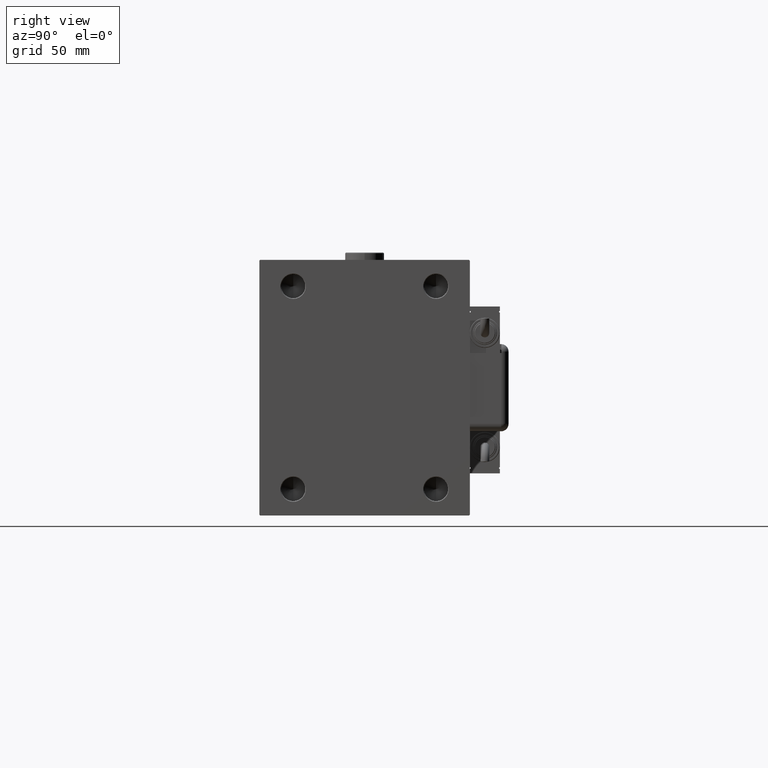
[diagram: clean part render]
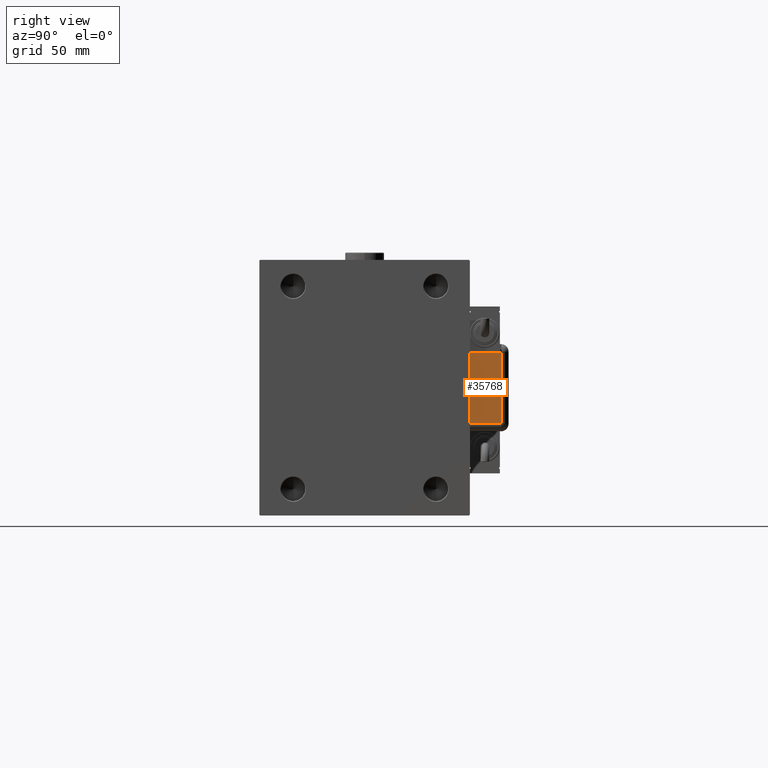
[diagram: same view with one face highlighted and labeled with its STEP entity id]
A machine part, right view. The second image highlights one B-rep face of the part: STEP entity #35768.
In plain terms, the highlighted planar face has unit normal (1, -0, -0).
Its self-contained STEP definition (entity closure, byte-faithful):
#97 = FACE_OUTER_BOUND ( 'NONE', #5649, .T. ) ;
#475 = EDGE_CURVE ( 'NONE', #59196, #15305, #8793, .T. ) ;
#1160 = VECTOR ( 'NONE', #48503, 1000.000000000000000 ) ;
#3056 = VECTOR ( 'NONE', #63260, 1000.000000000000000 ) ;
#5649 = EDGE_LOOP ( 'NONE', ( #14278, #44533, #53212, #47483 ) ) ;
#8718 = VECTOR ( 'NONE', #32786, 1000.000000000000000 ) ;
#8793 = LINE ( 'NONE', #28641, #1160 ) ;
#9655 = EDGE_CURVE ( 'NONE', #38835, #59196, #44726, .T. ) ;
#11429 = CARTESIAN_POINT ( 'NONE',  ( -23.99999999999999645, 20.79999999999998295, 0.000000000000000000 ) ) ;
#13032 = CARTESIAN_POINT ( 'NONE',  ( 23.00000000000000000, 0.000000000000000000, 0.000000000000000000 ) ) ;
#14278 = ORIENTED_EDGE ( 'NONE', *, *, #33877, .T. ) ;
#15305 = VERTEX_POINT ( 'NONE', #20131 ) ;
#20131 = CARTESIAN_POINT ( 'NONE',  ( 23.00000000000000000, 20.79999999999998295, 1.734723475976807094E-15 ) ) ;
#23522 = CARTESIAN_POINT ( 'NONE',  ( -23.99999999999999289, 1.007682896475360021E-13, 0.000000000000000000 ) ) ;
#24969 = AXIS2_PLACEMENT_3D ( 'NONE', #30024, #45295, #35840 ) ;
#28641 = CARTESIAN_POINT ( 'NONE',  ( 23.00000000000000000, 0.000000000000000000, 0.000000000000000000 ) ) ;
#30024 = CARTESIAN_POINT ( 'NONE',  ( 0.000000000000000000, 0.000000000000000000, 0.000000000000000000 ) ) ;
#32786 = DIRECTION ( 'NONE',  ( 1.000000000000000000, -2.079047426506382950E-15, -0.000000000000000000 ) ) ;
#32952 = LINE ( 'NONE', #62926, #3056 ) ;
#33096 = CARTESIAN_POINT ( 'NONE',  ( -23.99999999999999645, 20.79999999999998295, 0.000000000000000000 ) ) ;
#33877 = EDGE_CURVE ( 'NONE', #48290, #15305, #32952, .T. ) ;
#35206 = DIRECTION ( 'NONE',  ( -0.000000000000000000, 1.000000000000000000, -0.000000000000000000 ) ) ;
#35768 = ADVANCED_FACE ( 'NONE', ( #97 ), #54451, .T. ) ;
#35840 = DIRECTION ( 'NONE',  ( -1.000000000000000000, 0.000000000000000000, -0.000000000000000000 ) ) ;
#38835 = VERTEX_POINT ( 'NONE', #23522 ) ;
#44533 = ORIENTED_EDGE ( 'NONE', *, *, #475, .F. ) ;
#44726 = LINE ( 'NONE', #49282, #8718 ) ;
#45295 = DIRECTION ( 'NONE',  ( 0.000000000000000000, 0.000000000000000000, -1.000000000000000000 ) ) ;
#45606 = LINE ( 'NONE', #11429, #47667 ) ;
#47483 = ORIENTED_EDGE ( 'NONE', *, *, #63830, .T. ) ;
#47667 = VECTOR ( 'NONE', #35206, 1000.000000000000000 ) ;
#48290 = VERTEX_POINT ( 'NONE', #33096 ) ;
#48503 = DIRECTION ( 'NONE',  ( 0.000000000000000000, 1.000000000000000000, 0.000000000000000000 ) ) ;
#49282 = CARTESIAN_POINT ( 'NONE',  ( 28.99999999999999645, -9.421223957302265857E-15, 0.000000000000000000 ) ) ;
#53212 = ORIENTED_EDGE ( 'NONE', *, *, #9655, .F. ) ;
#54451 = PLANE ( 'NONE',  #24969 ) ;
#59196 = VERTEX_POINT ( 'NONE', #13032 ) ;
#62926 = CARTESIAN_POINT ( 'NONE',  ( 23.99999999999999289, 20.79999999999998295, 0.000000000000000000 ) ) ;
#63260 = DIRECTION ( 'NONE',  ( 1.000000000000000000, -0.000000000000000000, -0.000000000000000000 ) ) ;
#63830 = EDGE_CURVE ( 'NONE', #38835, #48290, #45606, .T. ) ;